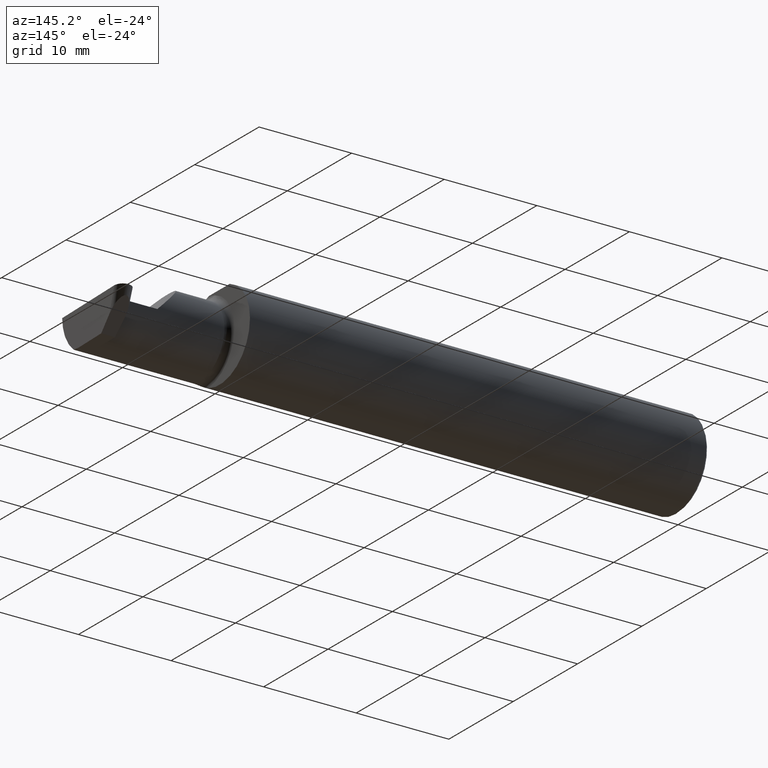
[diagram: clean part render]
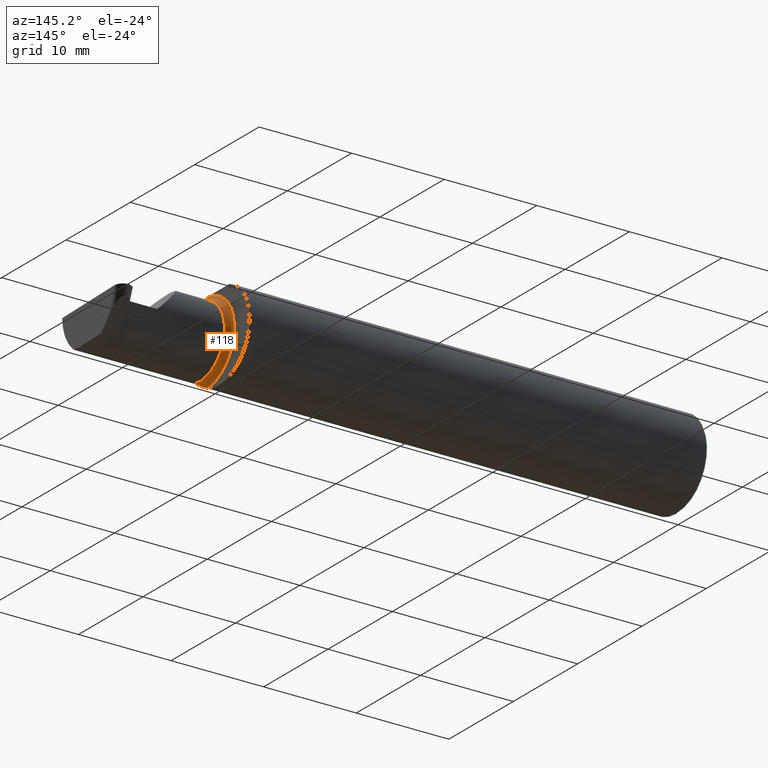
[diagram: same view with one face highlighted and labeled with its STEP entity id]
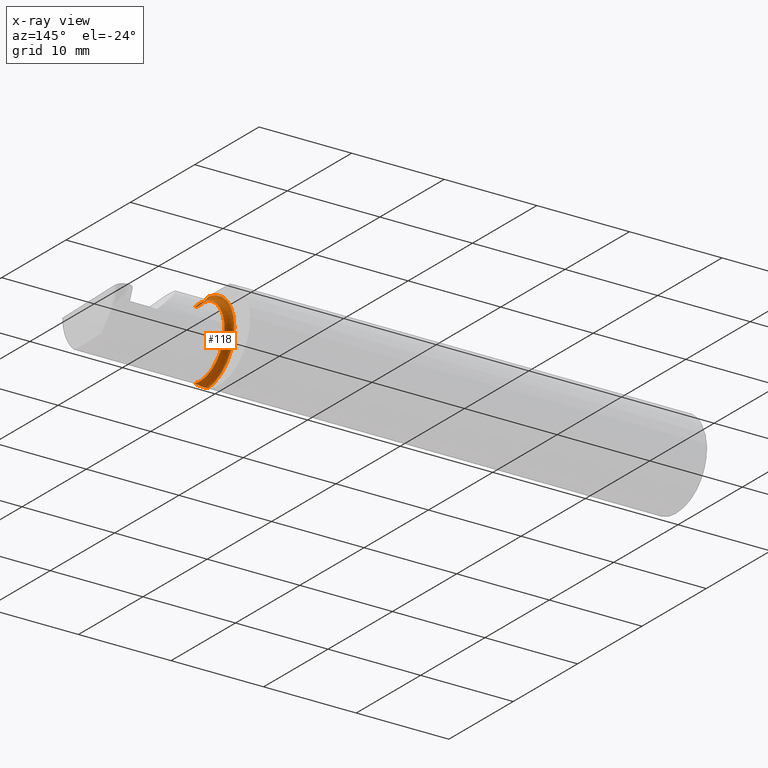
[diagram: x-ray of the same camera — body ghosted, the highlighted face saturated]
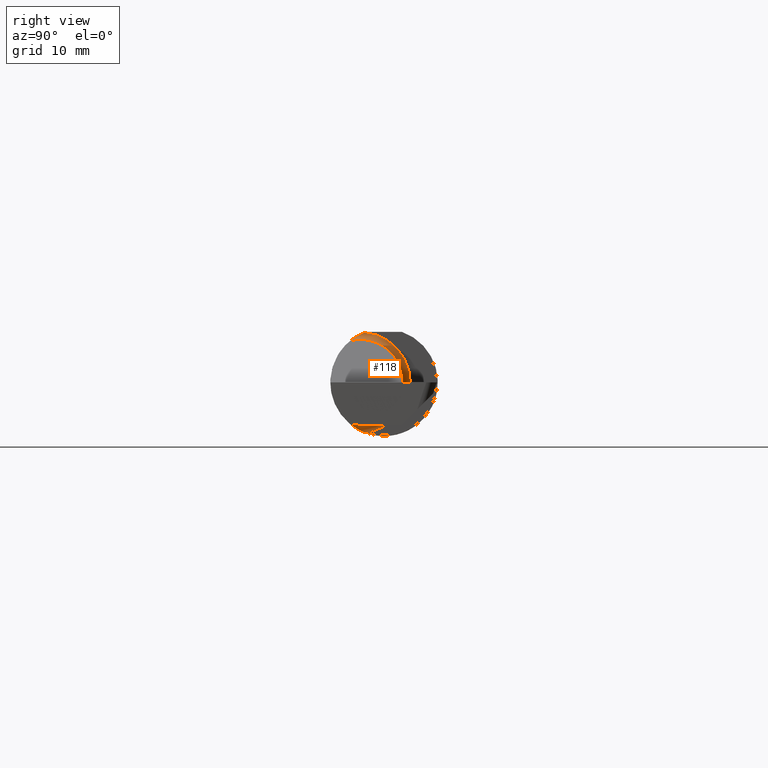
[diagram: same view with one face highlighted and labeled with its STEP entity id]
A machine part, auxiliary view. The second image highlights one B-rep face of the part: STEP entity #118.
The next image is the same camera in x-ray: the body ghosted, the highlighted face saturated — about 0% of this face is hidden behind the body in this view.
A second angle (right view) of the same face is appended — the face is thin or edge-on in the first view.
In plain terms, the highlighted toroidal blend (fillet) surface has major radius 4.445 mm and minor (blend) radius 0.635 mm.
Its self-contained STEP definition (entity closure, byte-faithful):
#32 = AXIS2_PLACEMENT_3D ( 'NONE', #461, #626, #520 ) ;
#36 = CARTESIAN_POINT ( 'NONE',  ( 1.972161949849307927, -0.1172600179964061184, 0.1461167706989260351 ) ) ;
#38 = CARTESIAN_POINT ( 'NONE',  ( 1.950353553376444671, -0.07868116735658677030, 0.1701139256562800572 ) ) ;
#41 = DIRECTION ( 'NONE',  ( 3.558239494867688555E-17, -1.000000000000000000, 0.000000000000000000 ) ) ;
#66 = AXIS2_PLACEMENT_3D ( 'NONE', #207, #591, #41 ) ;
#74 = EDGE_CURVE ( 'NONE', #76, #550, #603, .T. ) ;
#76 = VERTEX_POINT ( 'NONE', #531 ) ;
#102 = CARTESIAN_POINT ( 'NONE',  ( 1.952960551809340917, -0.09317341542745735672, -0.1626248379125197208 ) ) ;
#104 = EDGE_LOOP ( 'NONE', ( #473, #499, #108, #321 ) ) ;
#108 = ORIENTED_EDGE ( 'NONE', *, *, #526, .T. ) ;
#118 = ADVANCED_FACE ( 'NONE', ( #151 ), #167, .F. ) ;
#133 = AXIS2_PLACEMENT_3D ( 'NONE', #509, #225, #445 ) ;
#151 = FACE_OUTER_BOUND ( 'NONE', #104, .T. ) ;
#167 = TOROIDAL_SURFACE ( 'NONE', #66, 0.1749999999999999889, 0.02499999999999993894 ) ;
#176 = B_SPLINE_CURVE_WITH_KNOTS ( 'NONE', 3,
 ( #691, #197, #372, #643, #250, #311, #361, #102, #593, #365, #260, #199 ),
 .UNSPECIFIED., .F., .F.,
 ( 4, 2, 2, 2, 2, 4 ),
 ( 1.967976973726874814E-07, 0.0002120314145722334794, 0.0004238660314470942339, 0.0008475352651968040335, 0.001271204498946513833, 0.001694873732696223524 ),
 .UNSPECIFIED. ) ;
#197 = CARTESIAN_POINT ( 'NONE',  ( 1.972174967710399685, -0.1172600179964005812, -0.1461167706989304482 ) ) ;
#199 = CARTESIAN_POINT ( 'NONE',  ( 1.949999999999999956, -0.06851976604679065053, -0.1743704796142198643 ) ) ;
#207 = CARTESIAN_POINT ( 'NONE',  ( 1.974999999999999867, -0.08334999999999999354, 0.000000000000000000 ) ) ;
#214 = CARTESIAN_POINT ( 'NONE',  ( 1.965004157323697376, -0.1137044537483316159, 0.1489098419202428691 ) ) ;
#221 = VERTEX_POINT ( 'NONE', #282 ) ;
#225 = DIRECTION ( 'NONE',  ( -1.000000000000000000, -3.558239494867688555E-17, -0.000000000000000000 ) ) ;
#250 = CARTESIAN_POINT ( 'NONE',  ( 1.963203859946833552, -0.1120371980050636901, -0.1501764597936560142 ) ) ;
#260 = CARTESIAN_POINT ( 'NONE',  ( 1.949999999999999512, -0.07368234487347190276, -0.1723418180300748115 ) ) ;
#262 = CARTESIAN_POINT ( 'NONE',  ( 1.974999999999999867, -0.1172600179964006506, 0.1461167706989304205 ) ) ;
#263 = EDGE_CURVE ( 'NONE', #76, #318, #446, .T. ) ;
#282 = CARTESIAN_POINT ( 'NONE',  ( 1.974999999999999867, -0.1172600179964006090, -0.1461167706989303927 ) ) ;
#311 = CARTESIAN_POINT ( 'NONE',  ( 1.958439486659306228, -0.1064616213911156600, -0.1542305641651501857 ) ) ;
#312 = CARTESIAN_POINT ( 'NONE',  ( 1.949999999999999956, -0.07367581953296704900, 0.1723443821957854338 ) ) ;
#318 = VERTEX_POINT ( 'NONE', #571 ) ;
#321 = ORIENTED_EDGE ( 'NONE', *, *, #263, .F. ) ;
#338 = CIRCLE ( 'NONE', #32, 0.1500000000000000500 ) ;
#339 = EDGE_CURVE ( 'NONE', #550, #221, #338, .T. ) ;
#361 = CARTESIAN_POINT ( 'NONE',  ( 1.956304331342286984, -0.1022198306720689814, -0.1570962426853818594 ) ) ;
#365 = CARTESIAN_POINT ( 'NONE',  ( 1.950358271039143832, -0.07873626113568077400, -0.1700887912276895508 ) ) ;
#372 = CARTESIAN_POINT ( 'NONE',  ( 1.969511795768554174, -0.1163687266324233971, -0.1468371510166789906 ) ) ;
#378 = CARTESIAN_POINT ( 'NONE',  ( 1.958475602106621194, -0.1064978748893405658, 0.1542035505680384166 ) ) ;
#424 = CARTESIAN_POINT ( 'NONE',  ( 1.949999999999999956, -0.06851976604679065053, 0.1743704796142198643 ) ) ;
#445 = DIRECTION ( 'NONE',  ( 0.000000000000000000, -1.000000000000000000, 0.000000000000000000 ) ) ;
#446 = CIRCLE ( 'NONE', #133, 0.1749999999999999889 ) ;
#461 = CARTESIAN_POINT ( 'NONE',  ( 1.974999999999999867, -0.08335000000000000742, 0.000000000000000000 ) ) ;
#473 = ORIENTED_EDGE ( 'NONE', *, *, #74, .T. ) ;
#477 = CARTESIAN_POINT ( 'NONE',  ( 1.969481469043492528, -0.1163560528186165510, 0.1468472430636323656 ) ) ;
#499 = ORIENTED_EDGE ( 'NONE', *, *, #339, .T. ) ;
#509 = CARTESIAN_POINT ( 'NONE',  ( 1.949999999999999956, -0.08335000000000000742, 0.000000000000000000 ) ) ;
#520 = DIRECTION ( 'NONE',  ( 0.000000000000000000, -1.000000000000000000, 0.000000000000000000 ) ) ;
#526 = EDGE_CURVE ( 'NONE', #221, #318, #176, .T. ) ;
#531 = CARTESIAN_POINT ( 'NONE',  ( 1.949999999999999956, -0.06851976604679065053, 0.1743704796142198643 ) ) ;
#550 = VERTEX_POINT ( 'NONE', #647 ) ;
#571 = CARTESIAN_POINT ( 'NONE',  ( 1.949999999999999956, -0.06851976604679065053, -0.1743704796142198643 ) ) ;
#584 = CARTESIAN_POINT ( 'NONE',  ( 1.956287624083519416, -0.1021858045380144991, 0.1571187174372875306 ) ) ;
#591 = DIRECTION ( 'NONE',  ( -1.000000000000000000, -3.558239494867688555E-17, -0.000000000000000000 ) ) ;
#593 = CARTESIAN_POINT ( 'NONE',  ( 1.951843912362378086, -0.08846956905169081620, -0.1652353808078972919 ) ) ;
#603 = B_SPLINE_CURVE_WITH_KNOTS ( 'NONE', 3,
 ( #424, #312, #38, #696, #641, #584, #378, #654, #214, #477, #36, #262 ),
 .UNSPECIFIED., .F., .F.,
 ( 4, 2, 2, 2, 2, 4 ),
 ( 4.423516731080767705E-05, 0.0004615475116586703792, 0.0008788598560065330814, 0.001296172200354395784, 0.001504828372528326267, 0.001713484544702256968 ),
 .UNSPECIFIED. ) ;
#626 = DIRECTION ( 'NONE',  ( -1.000000000000000000, -3.558239494867688555E-17, -0.000000000000000000 ) ) ;
#641 = CARTESIAN_POINT ( 'NONE',  ( 1.952945243422982369, -0.09312071749437422774, 0.1626553472577906556 ) ) ;
#643 = CARTESIAN_POINT ( 'NONE',  ( 1.965028532764137914, -0.1137241120808233780, -0.1488947809299405178 ) ) ;
#647 = CARTESIAN_POINT ( 'NONE',  ( 1.974999999999999867, -0.1172600179964006506, 0.1461167706989304205 ) ) ;
#654 = CARTESIAN_POINT ( 'NONE',  ( 1.963163223656403389, -0.1119926267047277602, 0.1502091925606062750 ) ) ;
#691 = CARTESIAN_POINT ( 'NONE',  ( 1.974999999999999867, -0.1172600179964006090, -0.1461167706989303927 ) ) ;
#696 = CARTESIAN_POINT ( 'NONE',  ( 1.951829077486400443, -0.08839624499054650475, 0.1652742498708037744 ) ) ;